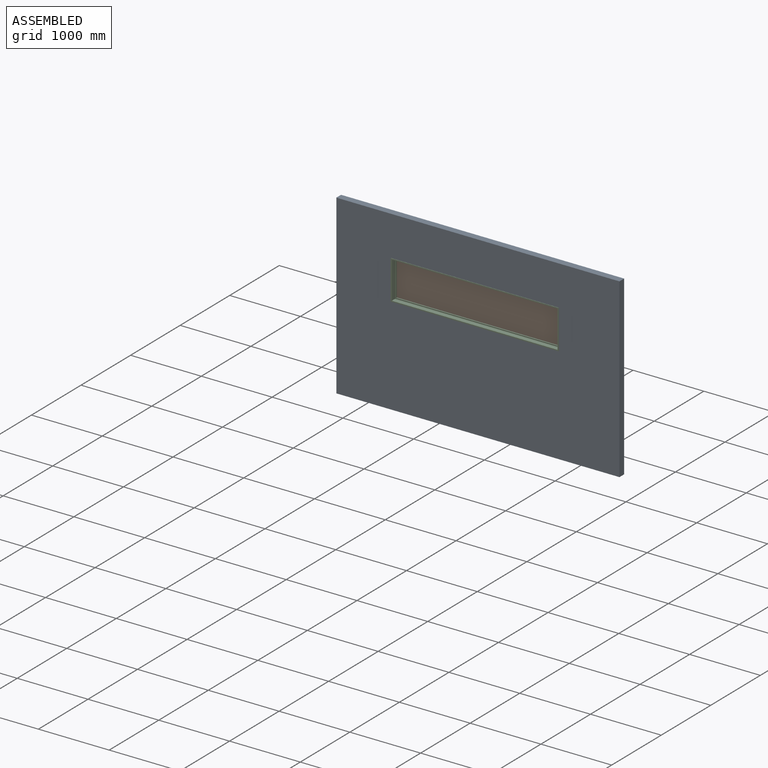
[diagram: assembled view]
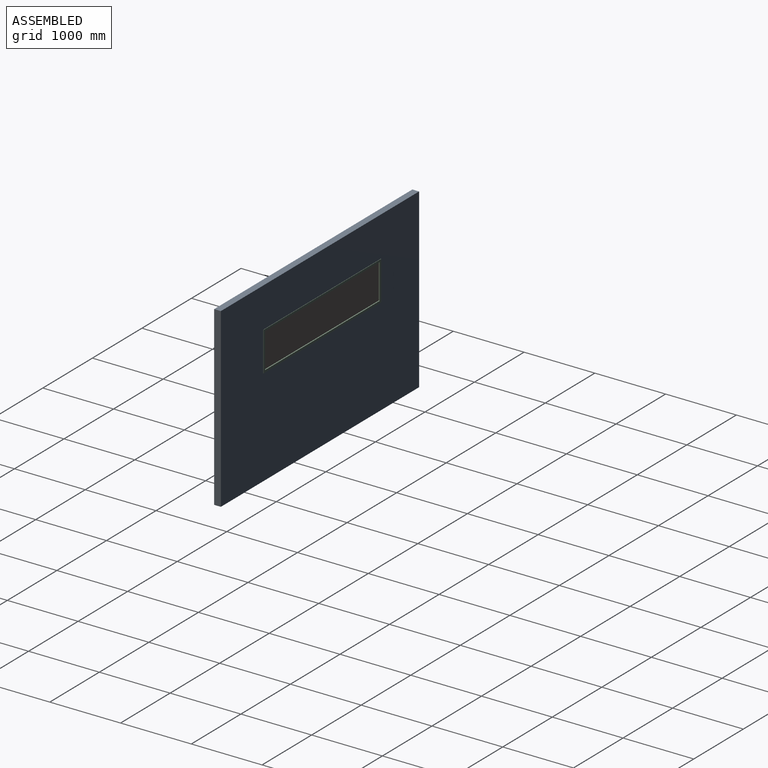
[diagram: assembled view, second angle]
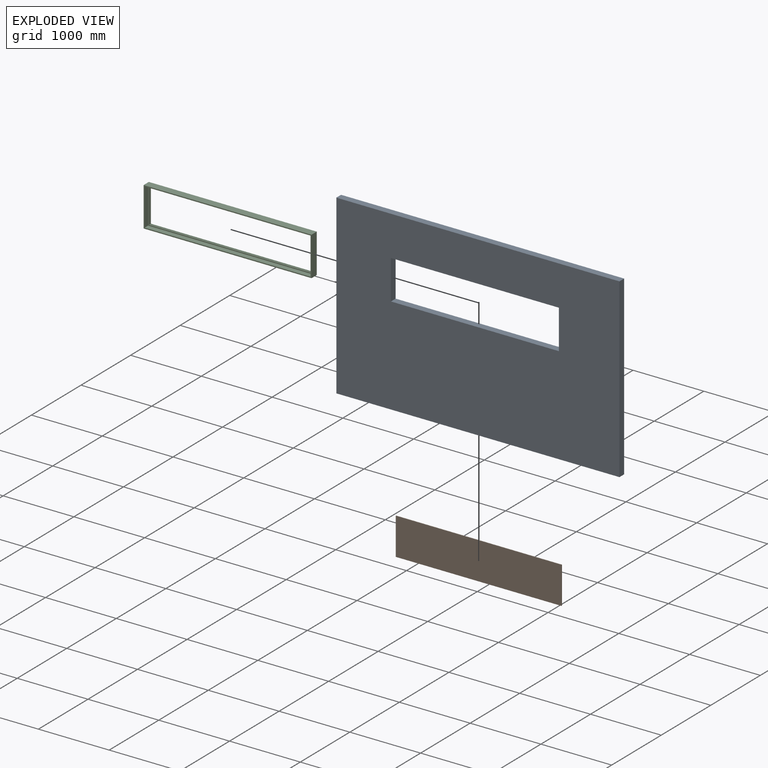
[diagram: exploded view]
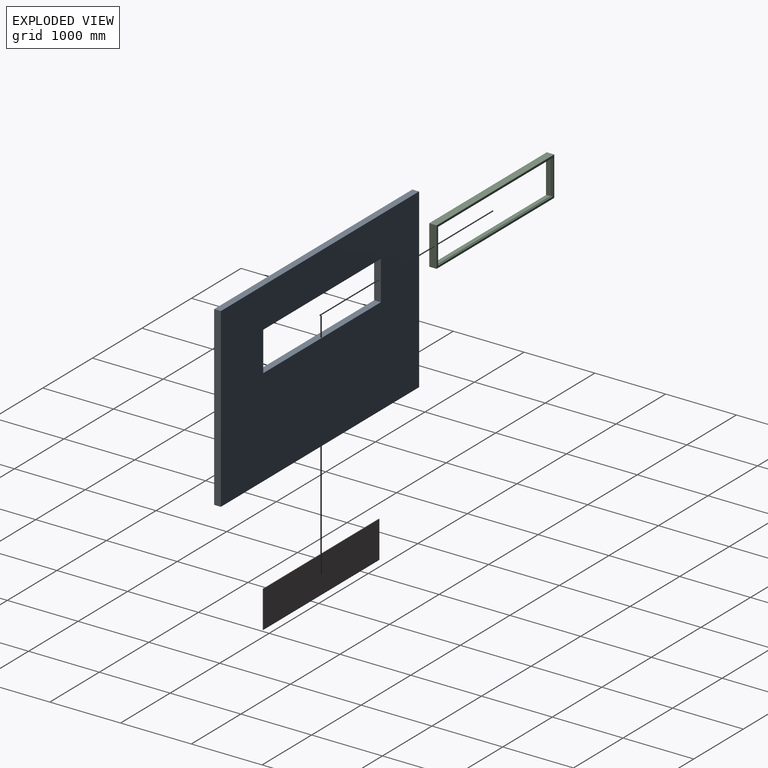
[diagram: exploded view, second angle]
ASSEMBLY  parts=3 mates=2
PART A: 10 faces, bbox 4000x95x2500 mm
  f0: plane 4000x95mm, normal (0,0,1), area 380000mm2, adj f1,f7,f8,f9
  f1: plane 2500x95mm, normal (-1,0,0), area 237500mm2, adj f0,f2,f8,f9
  f2: plane 4000x95mm, normal (0,0,-1), area 380000mm2, adj f1,f7,f8,f9
  f3: plane 2373x95mm, normal (0,0,-1), area 225435mm2, adj f4,f6,f8,f9
  f4: plane 555x95mm, normal (-1,0,0), area 52725mm2, adj f3,f5,f8,f9
  f5: plane 2373x95mm, normal (0,0,1), area 225435mm2, adj f4,f6,f8,f9
  f6: plane 555x95mm, normal (1,0,0), area 52725mm2, adj f3,f5,f8,f9
  f7: plane 2500x95mm, normal (1,0,0), area 237500mm2, adj f0,f2,f8,f9
  f8: plane 4000x2500mm, normal (0,-1,0), area 8682985mm2, adj f0,f1,f2,f3,f4,f5,f6,f7
  f9: plane 4000x2500mm, normal (0,1,0), area 8682985mm2, adj f0,f1,f2,f3,f4,f5,f6,f7
PART B: 6 faces, bbox 2343x8x525 mm
  f0: plane 2343x525mm, normal (0,1,0), area 1230075mm2, adj f1,f3,f4,f5
  f1: plane 525x8mm, normal (-1,0,0), area 4200mm2, adj f0,f2,f3,f4
  f2: plane 2343x525mm, normal (0,-1,0), area 1230075mm2, adj f1,f3,f4,f5
  f3: plane 2343x8mm, normal (0,0,1), area 18744mm2, adj f0,f1,f2,f5
  f4: plane 2343x8mm, normal (0,0,-1), area 18744mm2, adj f0,f1,f2,f5
  f5: plane 525x8mm, normal (1,0,0), area 4200mm2, adj f0,f2,f3,f4
PART C: 25 faces, bbox 2373x105x555 mm
  f0: plane 525x8mm, normal (-1,0,0), area 4200mm2, adj f1,f2,f18,f24
  f1: plane 2343x8mm, normal (0,0,1), area 18744mm2, adj f0,f5,f18,f24
  f2: plane 2343x8mm, normal (0,0,-1), area 18744mm2, adj f0,f5,f18,f24
  f3: plane 525x67mm, normal (-1,0,0), area 35175mm2, adj f4,f6,f12,f19
  f4: plane 2343x67mm, normal (0,0,1), area 156981mm2, adj f3,f11,f12,f19
  f5: plane 525x8mm, normal (1,0,0), area 4200mm2, adj f1,f2,f18,f24
  f6: plane 2343x67mm, normal (0,0,-1), area 156981mm2, adj f3,f11,f12,f19
  f7: plane 2373x105mm, normal (0,0,-1), area 249165mm2, adj f8,f10,f12,f13
  f8: plane 555x105mm, normal (1,0,0), area 58275mm2, adj f7,f9,f12,f13
  f9: plane 2373x105mm, normal (0,0,1), area 249165mm2, adj f8,f10,f12,f13
  f10: plane 555x105mm, normal (-1,0,0), area 58275mm2, adj f7,f9,f12,f13
  f11: plane 525x67mm, normal (1,0,0), area 35175mm2, adj f4,f6,f12,f19
  f12: plane 2373x555mm, normal (0,-1,0), area 86940mm2, adj f3,f4,f6,f7,f8,f9,f10,f11
  f13: plane 2373x555mm, normal (0,1,0), area 172080mm2, adj f7,f8,f9,f10,f20,f21,f22,f23
  f14: plane 2313x15mm, normal (0,0,1), area 34695mm2, adj f15,f17,f18,f19
  f15: plane 495x15mm, normal (1,0,0), area 7425mm2, adj f14,f16,f18,f19
  f16: plane 2313x15mm, normal (0,0,-1), area 34695mm2, adj f15,f17,f18,f19
  f17: plane 495x15mm, normal (-1,0,0), area 7425mm2, adj f14,f16,f18,f19
  f18: plane 2343x525mm, normal (0,1,0), area 85140mm2, adj f0,f1,f2,f5,f14,f15,f16,f17
  f19: plane 2343x525mm, normal (0,-1,0), area 85140mm2, adj f3,f4,f6,f11,f14,f15,f16,f17
  f20: plane 2313x15mm, normal (0,0,-1), area 34695mm2, adj f13,f21,f23,f24
  f21: plane 495x15mm, normal (1,0,0), area 7425mm2, adj f13,f20,f22,f24
  f22: plane 2313x15mm, normal (0,0,1), area 34695mm2, adj f13,f21,f23,f24
  f23: plane 495x15mm, normal (-1,0,0), area 7425mm2, adj f13,f20,f22,f24
  f24: plane 2343x525mm, normal (0,-1,0), area 85140mm2, adj f0,f1,f2,f5,f20,f21,f22,f23
PLACE A at identity fixed
PLACE B at identity
PLACE C at identity
MATE fastened A.f5 <-> C.f7  axis (0,0,1) through (0,0,-277.5)mm
MATE fastened B.f4 <-> C.f1  axis (0,0,-1) through (0,33.5,-262.5)mm
